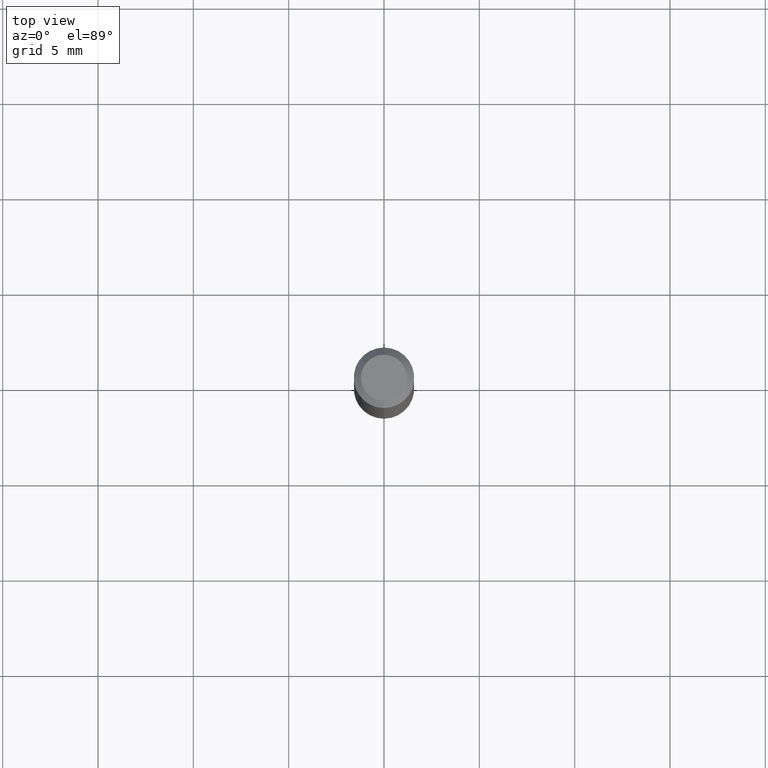
[diagram: clean part render]
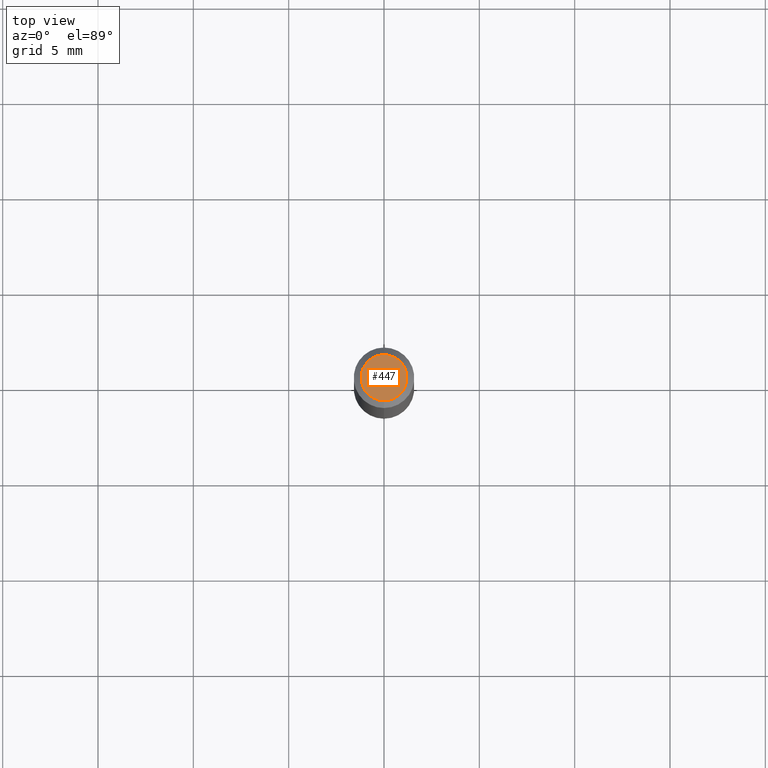
[diagram: same view with one face highlighted and labeled with its STEP entity id]
A machine part, top view. The second image highlights one B-rep face of the part: STEP entity #447.
In plain terms, the highlighted planar face has unit normal (0, -0, -1).
Its self-contained STEP definition (entity closure, byte-faithful):
#12 = CARTESIAN_POINT ( 'NONE',  ( 3.840629472727447874E-16, 0.04749999999999999362, -1.747056831868805136E-16 ) ) ;
#13 = PLANE ( 'NONE',  #453 ) ;
#71 = CARTESIAN_POINT ( 'NONE',  ( 2.166807700575379418E-46, -3.093620742966239913E-32, -8.860491128317210045E-18 ) ) ;
#77 = CIRCLE ( 'NONE', #240, 0.04749999999999999362 ) ;
#78 = CIRCLE ( 'NONE', #173, 0.04749999999999999362 ) ;
#120 = EDGE_LOOP ( 'NONE', ( #426, #393 ) ) ;
#125 = VERTEX_POINT ( 'NONE', #12 ) ;
#173 = AXIS2_PLACEMENT_3D ( 'NONE', #255, #414, #465 ) ;
#240 = AXIS2_PLACEMENT_3D ( 'NONE', #71, #499, #460 ) ;
#245 = EDGE_CURVE ( 'NONE', #125, #413, #78, .T. ) ;
#255 = CARTESIAN_POINT ( 'NONE',  ( 2.166807700575379418E-46, -3.093620742966239913E-32, -8.860491128317210045E-18 ) ) ;
#278 = DIRECTION ( 'NONE',  ( 2.445471327938568460E-29, -3.491477727548701218E-15, -1.000000000000000000 ) ) ;
#314 = EDGE_CURVE ( 'NONE', #413, #125, #77, .T. ) ;
#322 = FACE_OUTER_BOUND ( 'NONE', #120, .T. ) ;
#328 = CARTESIAN_POINT ( 'NONE',  ( 3.316907271900976096E-16, 0.04749999999999999362, -1.702754376227218940E-16 ) ) ;
#365 = CARTESIAN_POINT ( 'NONE',  ( -3.773273898774340269E-16, -0.04749999999999999362, 1.569847009302460843E-16 ) ) ;
#367 = DIRECTION ( 'NONE',  ( 6.982962677686265922E-15, 1.000000000000000000, -3.491477727548701218E-15 ) ) ;
#393 = ORIENTED_EDGE ( 'NONE', *, *, #314, .T. ) ;
#413 = VERTEX_POINT ( 'NONE', #365 ) ;
#414 = DIRECTION ( 'NONE',  ( -2.445471327938569020E-29, 3.491477727548701218E-15, 1.000000000000000000 ) ) ;
#426 = ORIENTED_EDGE ( 'NONE', *, *, #245, .T. ) ;
#447 = ADVANCED_FACE ( 'NONE', ( #322 ), #13, .F. ) ;
#453 = AXIS2_PLACEMENT_3D ( 'NONE', #328, #278, #367 ) ;
#460 = DIRECTION ( 'NONE',  ( -6.982962677686266711E-15, -1.000000000000000000, 3.491477727548701612E-15 ) ) ;
#465 = DIRECTION ( 'NONE',  ( -6.982962677686266711E-15, -1.000000000000000000, 3.491477727548701612E-15 ) ) ;
#499 = DIRECTION ( 'NONE',  ( -2.445471327938569020E-29, 3.491477727548701218E-15, 1.000000000000000000 ) ) ;